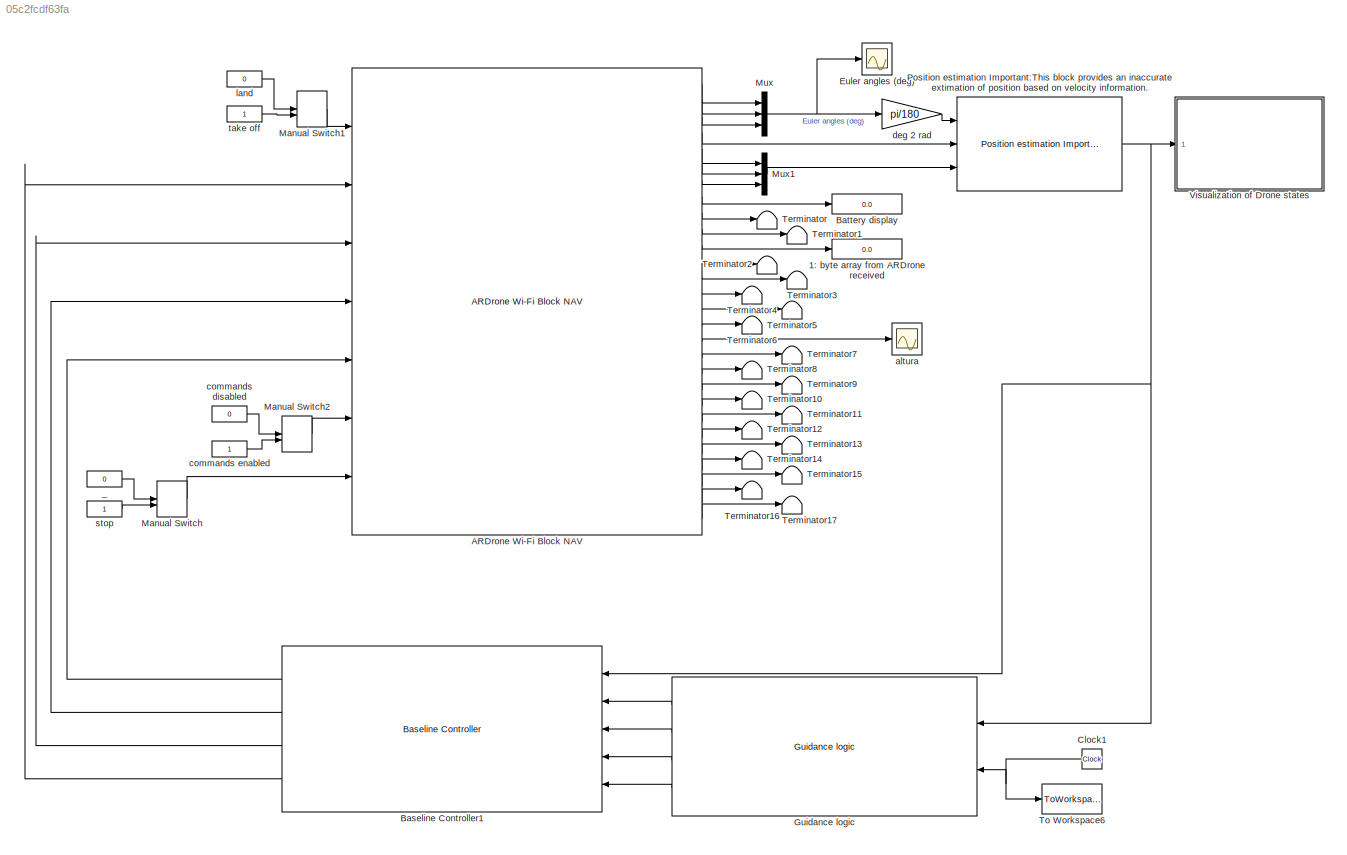
MODEL slx_05c2fcdf63fa
KIND model
CONFIG AbsTol = auto
CONFIG EnableMultiTasking = on
CONFIG FixedStep = sampleTime
CONFIG MaxStep = auto
CONFIG MinStep = auto
CONFIG RelTol = 1e-3
CONFIG SampleTimeConstraint = Unconstrained
CONFIG Solver = ode1
CONFIG SolverName = ode1
CONFIG StartTime = 0.0
CONFIG StopTime = 30
BLOCK [Display] 1: byte array from ARDrone received 
  Decimation = 1
  Ports = [1]
BLOCK [Reference] ARDrone Wi-Fi Block NAV  REF=ARBlocks/ARDrone Wi-Fi Block NAV
  Ports = [7, 28]
  SourceBlock = ARBlocks/ARDrone Wi-Fi Block NAV
  SourceType = SubSystem
BLOCK [Reference] Baseline Controller1  REF=ARBlocks/Baseline Controller
  Ports = [5, 4]
  SourceBlock = ARBlocks/Baseline Controller
  SourceType = SubSystem
BLOCK [Display] Battery display
  Decimation = 1
  Ports = [1]
BLOCK [Clock] Clock1
BLOCK [Scope] Euler angles (deg)
  NumInputPorts = 1
  Ports = [1]
  ScopeSpecificationString = Simulink.scopes.TimeScopeBlockCfg('CurrentConfiguration', extmgr.ConfigurationSet(extmgr.Configuration('Core','General UI',true),extmgr.Configuration('Core','Source UI',true),extmgr.Configuration('Sources','WiredSimulink',true,'DataLoggingSaveFormat','StructureWithTime','DataLoggingMaxPoints','500000','DataLoggingLimitDataPoints',true,'DataLoggingDecimation','1','DataLoggingDecimateData',true,'Dat...<+1735ch>
BLOCK [Reference] Guidance logic  REF=ARBlocks/Guidance logic
  Ports = [2, 4]
  SourceBlock = ARBlocks/Guidance logic
  SourceType = SubSystem
BLOCK [ManualSwitch] Manual Switch
  CurrentSetting = 0
BLOCK [ManualSwitch] Manual Switch1
BLOCK [ManualSwitch] Manual Switch2
  CurrentSetting = 0
BLOCK [Mux] Mux
  DisplayOption = bar
  Inputs = 3
  Ports = [3, 1]
BLOCK [Mux] Mux1
  DisplayOption = bar
  Inputs = 3
  Ports = [3, 1]
BLOCK [Reference] Position estimation Important:This block provides an inaccurate extimation of position based on  velocity information.   REF=ARBlocks/Position estimation
Important:This block provides an 
inaccurate extimation of position 
based on  velocity information. 
  Ports = [3, 1]
  SourceBlock = ARBlocks/Position estimation\nImportant:This block provides an \ninaccurate extimation of position \nbased on  velocity information.
  SourceType = SubSystem
BLOCK [Terminator] Terminator
BLOCK [Terminator] Terminator1
BLOCK [Terminator] Terminator10
BLOCK [Terminator] Terminator11
BLOCK [Terminator] Terminator12
BLOCK [Terminator] Terminator13
BLOCK [Terminator] Terminator14
BLOCK [Terminator] Terminator15
BLOCK [Terminator] Terminator16
BLOCK [Terminator] Terminator17
BLOCK [Terminator] Terminator2
BLOCK [Terminator] Terminator3
BLOCK [Terminator] Terminator4
BLOCK [Terminator] Terminator5
BLOCK [Terminator] Terminator6
BLOCK [Terminator] Terminator7
BLOCK [Terminator] Terminator8
BLOCK [Terminator] Terminator9
BLOCK [ToWorkspace] To Workspace6
  MaxDataPoints = inf
  Ports = [1]
  SampleTime = sampleTime
  VariableName = timeRT
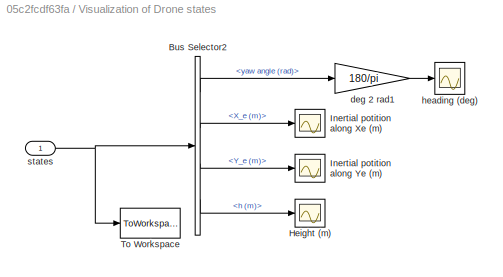
BLOCK [SubSystem] Visualization of Drone states
  Ports = [1]
  RequestExecContextInheritance = off
  Variant = off
BLOCK [BusSelector] Visualization of Drone states/Bus Selector2
  OutputAsBus = off
  OutputSignals = yaw angle (rad),X_e (m),Y_e (m),h (m)
  Ports = [1, 4]
BLOCK [Scope] Visualization of Drone states/Height (m)
  NumInputPorts = 1
  Ports = [1]
  ScopeSpecificationString = Simulink.scopes.TimeScopeBlockCfg('CurrentConfiguration', extmgr.ConfigurationSet(extmgr.Configuration('Core','General UI',true),extmgr.Configuration('Core','Source UI',true),extmgr.Configuration('Sources','WiredSimulink',true,'DataLoggingVariableName','ScopeData5','DataLoggingSaveFormat','StructureWithTime','DataLoggingMaxPoints','500000','DataLoggingLimitDataPoints',true,'DataLoggingDecimation',...<+1722ch>
BLOCK [Scope] Visualization of Drone states/Inertial potition along Xe (m)
  NumInputPorts = 1
  Ports = [1]
  ScopeSpecificationString = Simulink.scopes.TimeScopeBlockCfg('CurrentConfiguration', extmgr.ConfigurationSet(extmgr.Configuration('Core','General UI',true),extmgr.Configuration('Core','Source UI',true),extmgr.Configuration('Sources','WiredSimulink',true,'DataLoggingVariableName','ScopeData3','DataLoggingSaveFormat','StructureWithTime','DataLoggingMaxPoints','500000','DataLoggingLimitDataPoints',true,'DataLoggingDecimation',...<+1723ch>
BLOCK [Scope] Visualization of Drone states/Inertial potition along Ye (m)
  NumInputPorts = 1
  Ports = [1]
  ScopeSpecificationString = Simulink.scopes.TimeScopeBlockCfg('CurrentConfiguration', extmgr.ConfigurationSet(extmgr.Configuration('Core','General UI',true),extmgr.Configuration('Core','Source UI',true),extmgr.Configuration('Sources','WiredSimulink',true,'DataLoggingVariableName','ScopeData4','DataLoggingSaveFormat','StructureWithTime','DataLoggingMaxPoints','500000','DataLoggingLimitDataPoints',true,'DataLoggingDecimation',...<+1724ch>
BLOCK [ToWorkspace] Visualization of Drone states/To Workspace
  MaxDataPoints = inf
  Ports = [1]
  SampleTime = -1
  SaveFormat = Structure With Time
  VariableName = states
BLOCK [Gain] Visualization of Drone states/deg 2 rad1
  Gain = 180/pi
  OutDataTypeStr = Inherit: Inherit via internal rule
  ParamDataTypeStr = Inherit: Inherit via internal rule
  SaturateOnIntegerOverflow = off
BLOCK [Scope] Visualization of Drone states/heading (deg)
  NumInputPorts = 1
  Ports = [1]
  ScopeSpecificationString = Simulink.scopes.TimeScopeBlockCfg('CurrentConfiguration', extmgr.ConfigurationSet(extmgr.Configuration('Core','General UI',true),extmgr.Configuration('Core','Source UI',true),extmgr.Configuration('Sources','WiredSimulink',true,'DataLoggingVariableName','ScopeData2','DataLoggingSaveFormat','StructureWithTime','DataLoggingMaxPoints','500000','DataLoggingLimitDataPoints',true,'DataLoggingDecimation',...<+1740ch>
BLOCK [Inport] Visualization of Drone states/states
  IconDisplay = Port number
BLOCK [Constant] _
  Value = 0
BLOCK [Scope] altura
  NumInputPorts = 1
  Ports = [1]
  ScopeSpecificationString = Simulink.scopes.TimeScopeBlockCfg('CurrentConfiguration', extmgr.ConfigurationSet(extmgr.Configuration('Core','General UI',true),extmgr.Configuration('Core','Source UI',true),extmgr.Configuration('Sources','WiredSimulink',true,'DataLoggingSaveFormat','StructureWithTime','DataLoggingMaxPoints','500000','DataLoggingLimitDataPoints',true,'DataLoggingDecimation','1','DataLoggingDecimateData',true),ext...<+1646ch>
BLOCK [Constant] commands disabled
  Value = 0
BLOCK [Constant] commands enabled
BLOCK [Gain] deg 2 rad
  Gain = pi/180
  OutDataTypeStr = Inherit: Inherit via internal rule
  ParamDataTypeStr = Inherit: Inherit via internal rule
  SaturateOnIntegerOverflow = off
BLOCK [Constant] land
  Value = 0
BLOCK [Constant] stop
BLOCK [Constant] take off
LINE ARDrone Wi-Fi Block NAV:1 -> Mux:1
LINE ARDrone Wi-Fi Block NAV:10 -> Terminator1:1
LINE ARDrone Wi-Fi Block NAV:11 -> 1: byte array from ARDrone received :1
LINE ARDrone Wi-Fi Block NAV:12 -> Terminator2:1
LINE ARDrone Wi-Fi Block NAV:13 -> Terminator3:1
LINE ARDrone Wi-Fi Block NAV:14 -> Terminator4:1
LINE ARDrone Wi-Fi Block NAV:15 -> Terminator5:1
LINE ARDrone Wi-Fi Block NAV:16 -> Terminator6:1
LINE ARDrone Wi-Fi Block NAV:17 -> altura:1
LINE ARDrone Wi-Fi Block NAV:18 -> Terminator7:1
LINE ARDrone Wi-Fi Block NAV:19 -> Terminator8:1
LINE ARDrone Wi-Fi Block NAV:2 -> Mux:2
LINE ARDrone Wi-Fi Block NAV:20 -> Terminator9:1
LINE ARDrone Wi-Fi Block NAV:21 -> Terminator10:1
LINE ARDrone Wi-Fi Block NAV:22 -> Terminator11:1
LINE ARDrone Wi-Fi Block NAV:23 -> Terminator12:1
LINE ARDrone Wi-Fi Block NAV:24 -> Terminator13:1
LINE ARDrone Wi-Fi Block NAV:25 -> Terminator14:1
LINE ARDrone Wi-Fi Block NAV:26 -> Terminator15:1
LINE ARDrone Wi-Fi Block NAV:27 -> Terminator16:1
LINE ARDrone Wi-Fi Block NAV:28 -> Terminator17:1
LINE ARDrone Wi-Fi Block NAV:3 -> Mux:3
LINE ARDrone Wi-Fi Block NAV:4 -> Position estimation Important:This block provides an inaccurate extimation of position based on  velocity information. :2
LINE ARDrone Wi-Fi Block NAV:5 -> Mux1:1
LINE ARDrone Wi-Fi Block NAV:6 -> Mux1:2
LINE ARDrone Wi-Fi Block NAV:7 -> Mux1:3
LINE ARDrone Wi-Fi Block NAV:8 -> Battery display:1
LINE ARDrone Wi-Fi Block NAV:9 -> Terminator:1
LINE Baseline Controller1:1 -> ARDrone Wi-Fi Block NAV:5
LINE Baseline Controller1:2 -> ARDrone Wi-Fi Block NAV:4
LINE Baseline Controller1:3 -> ARDrone Wi-Fi Block NAV:3
LINE Baseline Controller1:4 -> ARDrone Wi-Fi Block NAV:2
NET Clock1:1 -> Guidance logic:2, To Workspace6:1
LINE Guidance logic:1 -> Baseline Controller1:2
LINE Guidance logic:2 -> Baseline Controller1:3
LINE Guidance logic:3 -> Baseline Controller1:4
LINE Guidance logic:4 -> Baseline Controller1:5
LINE Manual Switch1:1 -> ARDrone Wi-Fi Block NAV:1
LINE Manual Switch2:1 -> ARDrone Wi-Fi Block NAV:6
LINE Manual Switch:1 -> ARDrone Wi-Fi Block NAV:7
LINE Mux1:1 -> Position estimation Important:This block provides an inaccurate extimation of position based on  velocity information. :3
NET Mux:1 -> Euler angles (deg):1, deg 2 rad:1
NET Position estimation Important:This block provides an inaccurate extimation of position based on  velocity information. :1 -> Baseline Controller1:1, Guidance logic:1, Visualization of Drone states:1
LINE Visualization of Drone states/Bus Selector2:1 -> Visualization of Drone states/deg 2 rad1:1
LINE Visualization of Drone states/Bus Selector2:2 -> Visualization of Drone states/Inertial potition along Xe (m):1
LINE Visualization of Drone states/Bus Selector2:3 -> Visualization of Drone states/Inertial potition along Ye (m):1
LINE Visualization of Drone states/Bus Selector2:4 -> Visualization of Drone states/Height (m):1
LINE Visualization of Drone states/deg 2 rad1:1 -> Visualization of Drone states/heading (deg):1
NET Visualization of Drone states/states:1 -> Visualization of Drone states/Bus Selector2:1, Visualization of Drone states/To Workspace:1
LINE _:1 -> Manual Switch:1
LINE commands disabled:1 -> Manual Switch2:1
LINE commands enabled:1 -> Manual Switch2:2
LINE deg 2 rad:1 -> Position estimation Important:This block provides an inaccurate extimation of position based on  velocity information. :1
LINE land:1 -> Manual Switch1:1
LINE stop:1 -> Manual Switch:2
LINE take off:1 -> Manual Switch1:2
note: NET lines group one-source signal fan-out (src -> all destinations, sorted); 1:1 wires keep LINE
